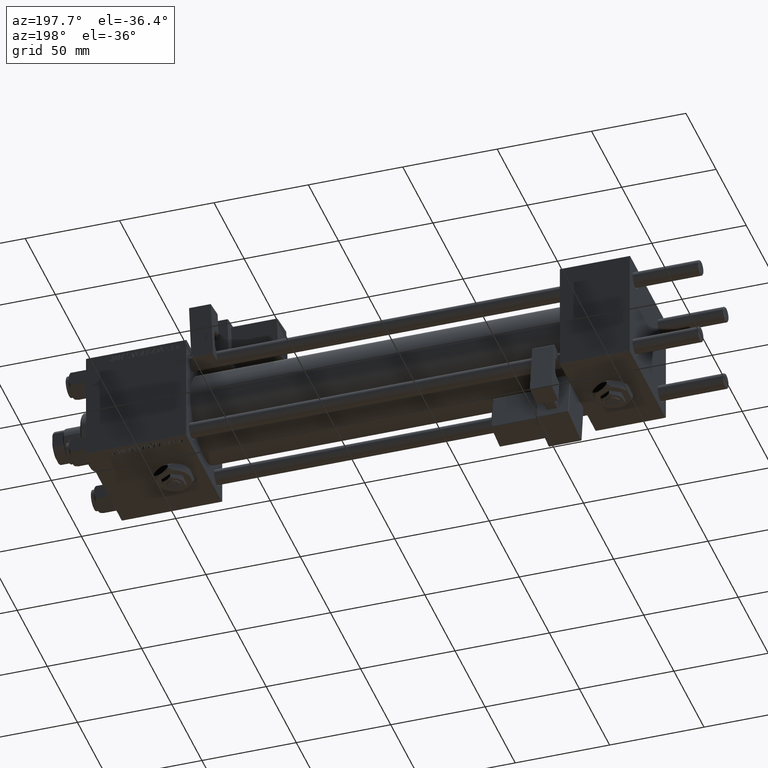
[diagram: clean part render]
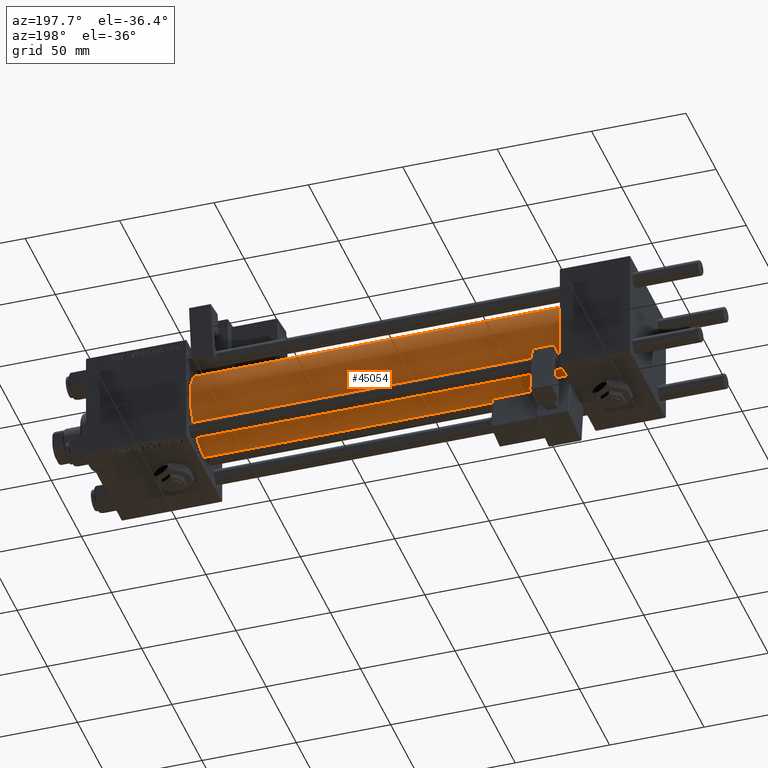
[diagram: same view with one face highlighted and labeled with its STEP entity id]
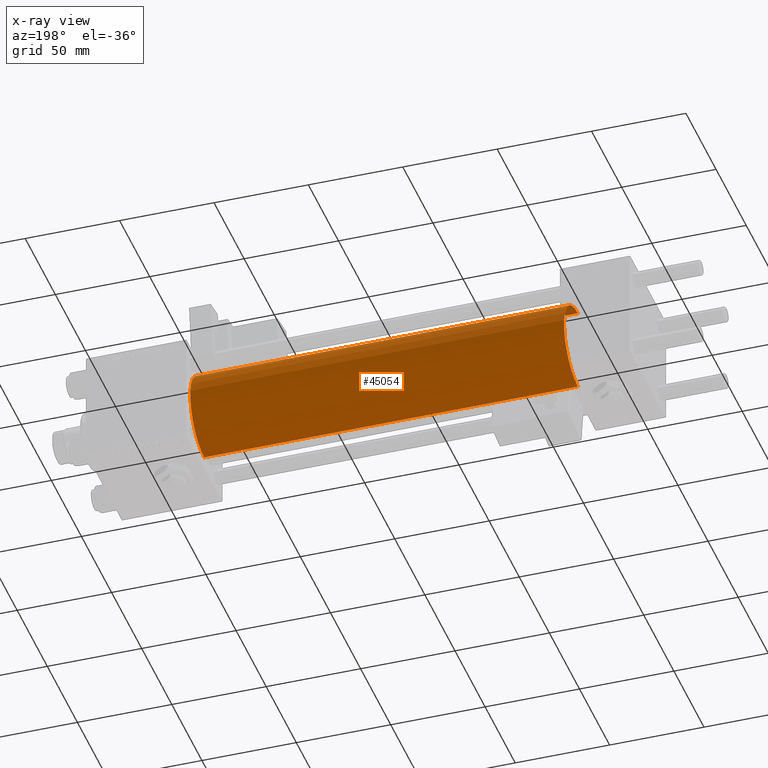
[diagram: x-ray of the same camera — body ghosted, the highlighted face saturated]
A machine part, auxiliary view. The second image highlights one B-rep face of the part: STEP entity #45054.
The next image is the same camera in x-ray: the body ghosted, the highlighted face saturated — about 0% of this face is hidden behind the body in this view.
In plain terms, the highlighted cylindrical surface (partial cylindrical patch) has radius 23 mm, axis along (-1, -0, -0).
Its self-contained STEP definition (entity closure, byte-faithful):
#952 = CARTESIAN_POINT ( 'NONE',  ( 37.00000000000000711, 0.000000000000000000, 0.000000000000000000 ) ) ;
#1771 = EDGE_CURVE ( 'NONE', #18817, #2579, #8414, .T. ) ;
#2579 = VERTEX_POINT ( 'NONE', #42605 ) ;
#3092 = DIRECTION ( 'NONE',  ( -1.000000000000000000, -0.000000000000000000, -0.000000000000000000 ) ) ;
#4719 = ORIENTED_EDGE ( 'NONE', *, *, #43200, .F. ) ;
#6178 = AXIS2_PLACEMENT_3D ( 'NONE', #35937, #3092, #27983 ) ;
#6493 = CARTESIAN_POINT ( 'NONE',  ( 235.0000000000000284, 0.000000000000000000, 23.00000000000000000 ) ) ;
#7201 = CYLINDRICAL_SURFACE ( 'NONE', #6178, 23.00000000000000000 ) ;
#8414 = CIRCLE ( 'NONE', #33763, 23.00000000000000000 ) ;
#9429 = DIRECTION ( 'NONE',  ( 0.000000000000000000, 0.000000000000000000, 1.000000000000000000 ) ) ;
#13496 = DIRECTION ( 'NONE',  ( 1.000000000000000000, -0.000000000000000000, 0.000000000000000000 ) ) ;
#16196 = EDGE_CURVE ( 'NONE', #48107, #2579, #31655, .T. ) ;
#18817 = VERTEX_POINT ( 'NONE', #26186 ) ;
#19750 = FACE_OUTER_BOUND ( 'NONE', #29513, .T. ) ;
#21732 = DIRECTION ( 'NONE',  ( 1.000000000000000000, 0.000000000000000000, 0.000000000000000000 ) ) ;
#22279 = CARTESIAN_POINT ( 'NONE',  ( 235.0000000000000284, 0.000000000000000000, 0.000000000000000000 ) ) ;
#22979 = CARTESIAN_POINT ( 'NONE',  ( 235.0000000000000284, 2.816687638038912352E-15, -23.00000000000000000 ) ) ;
#24892 = LINE ( 'NONE', #33132, #42701 ) ;
#26186 = CARTESIAN_POINT ( 'NONE',  ( 37.00000000000000711, 2.816687638038912352E-15, -23.00000000000000000 ) ) ;
#26289 = VECTOR ( 'NONE', #44783, 1000.000000000000000 ) ;
#27059 = CIRCLE ( 'NONE', #33201, 23.00000000000000000 ) ;
#27983 = DIRECTION ( 'NONE',  ( 0.000000000000000000, 0.000000000000000000, 1.000000000000000000 ) ) ;
#28638 = CARTESIAN_POINT ( 'NONE',  ( 235.0000000000000284, 0.000000000000000000, 23.00000000000000000 ) ) ;
#29513 = EDGE_LOOP ( 'NONE', ( #4719, #37960, #40440, #38056 ) ) ;
#31655 = LINE ( 'NONE', #6493, #26289 ) ;
#33132 = CARTESIAN_POINT ( 'NONE',  ( 235.0000000000000284, 2.816687638038912352E-15, -23.00000000000000000 ) ) ;
#33201 = AXIS2_PLACEMENT_3D ( 'NONE', #22279, #21732, #38995 ) ;
#33763 = AXIS2_PLACEMENT_3D ( 'NONE', #952, #13496, #9429 ) ;
#35937 = CARTESIAN_POINT ( 'NONE',  ( 235.0000000000000284, 0.000000000000000000, 0.000000000000000000 ) ) ;
#37960 = ORIENTED_EDGE ( 'NONE', *, *, #49271, .T. ) ;
#38056 = ORIENTED_EDGE ( 'NONE', *, *, #16196, .F. ) ;
#38995 = DIRECTION ( 'NONE',  ( 0.000000000000000000, 0.000000000000000000, -1.000000000000000000 ) ) ;
#40440 = ORIENTED_EDGE ( 'NONE', *, *, #1771, .T. ) ;
#42605 = CARTESIAN_POINT ( 'NONE',  ( 37.00000000000000711, 0.000000000000000000, 23.00000000000000000 ) ) ;
#42701 = VECTOR ( 'NONE', #53410, 1000.000000000000000 ) ;
#43200 = EDGE_CURVE ( 'NONE', #47573, #48107, #27059, .T. ) ;
#44783 = DIRECTION ( 'NONE',  ( -1.000000000000000000, -0.000000000000000000, -0.000000000000000000 ) ) ;
#45054 = ADVANCED_FACE ( 'NONE', ( #19750 ), #7201, .T. ) ;
#47573 = VERTEX_POINT ( 'NONE', #22979 ) ;
#48107 = VERTEX_POINT ( 'NONE', #28638 ) ;
#49271 = EDGE_CURVE ( 'NONE', #47573, #18817, #24892, .T. ) ;
#53410 = DIRECTION ( 'NONE',  ( -1.000000000000000000, -0.000000000000000000, -0.000000000000000000 ) ) ;